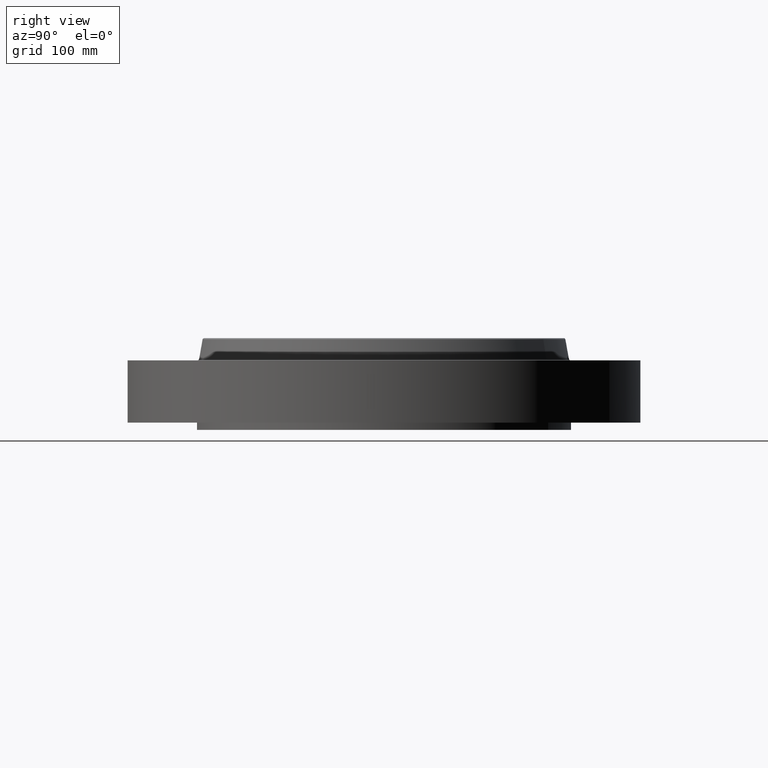
[diagram: clean part render]
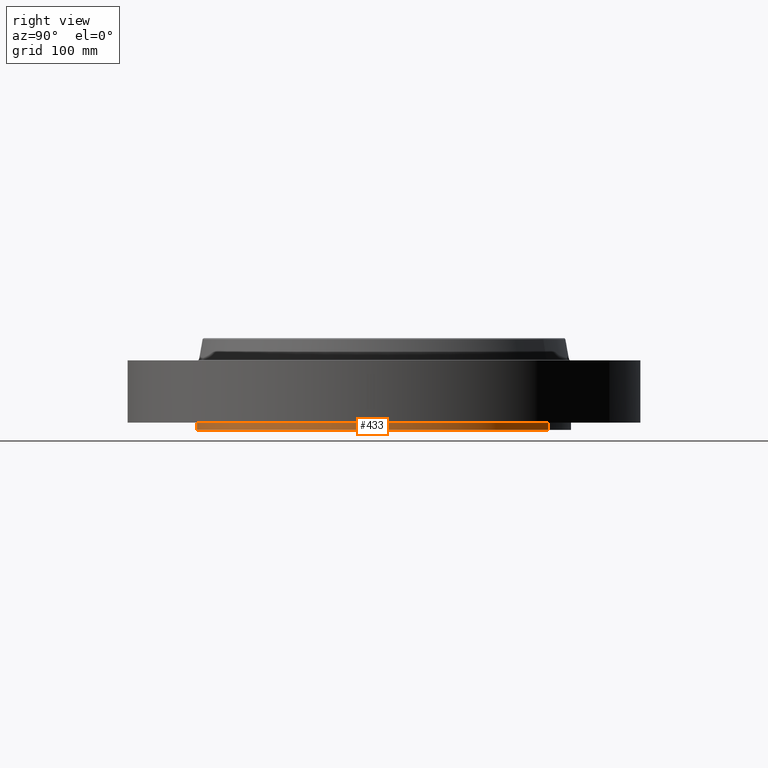
[diagram: same view with one face highlighted and labeled with its STEP entity id]
A machine part, right view. The second image highlights one B-rep face of the part: STEP entity #433.
In plain terms, the highlighted cylindrical surface (partial cylindrical patch) has radius 161.925 mm, axis along (0, 0, -1).
Its self-contained STEP definition (entity closure, byte-faithful):
#379=AXIS2_PLACEMENT_3D('Circle Axis2P3D',#377,#378,$) ;
#394=AXIS2_PLACEMENT_3D('Cylinder Axis2P3D',#391,#392,#393) ;
#424=AXIS2_PLACEMENT_3D('Circle Axis2P3D',#422,#423,$) ;
#372=CARTESIAN_POINT('Vertex',(-3.05633780861,-5.59458883207,-0.250000000001)) ;
#374=CARTESIAN_POINT('Vertex',(3.05633780861,5.59458883207,-0.250000000001)) ;
#377=CARTESIAN_POINT('Axis2P3D Location',(0.,0.,-0.250000000001)) ;
#391=CARTESIAN_POINT('Axis2P3D Location',(0.,0.,1.31500000001)) ;
#396=CARTESIAN_POINT('Line Origine',(-3.05633780861,-5.59458883207,-0.125)) ;
#400=CARTESIAN_POINT('Vertex',(-3.05633780861,-5.59458883207,8.39223703654E-016)) ;
#407=CARTESIAN_POINT('Vertex',(3.05633780861,5.59458883207,8.39223703654E-016)) ;
#410=CARTESIAN_POINT('Line Origine',(3.05633780861,5.59458883207,-0.125)) ;
#422=CARTESIAN_POINT('Axis2P3D Location',(0.,0.,8.39223703654E-016)) ;
#378=DIRECTION('Axis2P3D Direction',(0.,0.,-0.0393700787402)) ;
#392=DIRECTION('Axis2P3D Direction',(0.,0.,-0.0393700787402)) ;
#393=DIRECTION('Axis2P3D XDirection',(0.0188750212049,0.0345504945626,0.)) ;
#397=DIRECTION('Vector Direction',(0.,0.,-0.0393700787402)) ;
#411=DIRECTION('Vector Direction',(0.,0.,-0.0393700787402)) ;
#423=DIRECTION('Axis2P3D Direction',(0.,0.,-0.0393700787402)) ;
#398=VECTOR('Line Direction',#397,0.0393700787402) ;
#412=VECTOR('Line Direction',#411,0.0393700787402) ;
#428=ORIENTED_EDGE('',*,*,#381,.F.) ;
#429=ORIENTED_EDGE('',*,*,#414,.T.) ;
#430=ORIENTED_EDGE('',*,*,#426,.T.) ;
#431=ORIENTED_EDGE('',*,*,#402,.F.) ;
#433=ADVANCED_FACE('PartBody',(#432),#395,.T.) ;
#380=CIRCLE('generated circle',#379,6.37500000003) ;
#425=CIRCLE('generated circle',#424,6.37500000003) ;
#395=CYLINDRICAL_SURFACE('generated cylinder',#394,6.37500000003) ;
#381=EDGE_CURVE('',#375,#373,#380,.T.) ;
#402=EDGE_CURVE('',#373,#401,#399,.F.) ;
#414=EDGE_CURVE('',#375,#408,#413,.F.) ;
#426=EDGE_CURVE('',#408,#401,#425,.T.) ;
#427=EDGE_LOOP('',(#428,#429,#430,#431)) ;
#432=FACE_OUTER_BOUND('',#427,.T.) ;
#399=LINE('Line',#396,#398) ;
#413=LINE('Line',#410,#412) ;
#373=VERTEX_POINT('',#372) ;
#375=VERTEX_POINT('',#374) ;
#401=VERTEX_POINT('',#400) ;
#408=VERTEX_POINT('',#407) ;